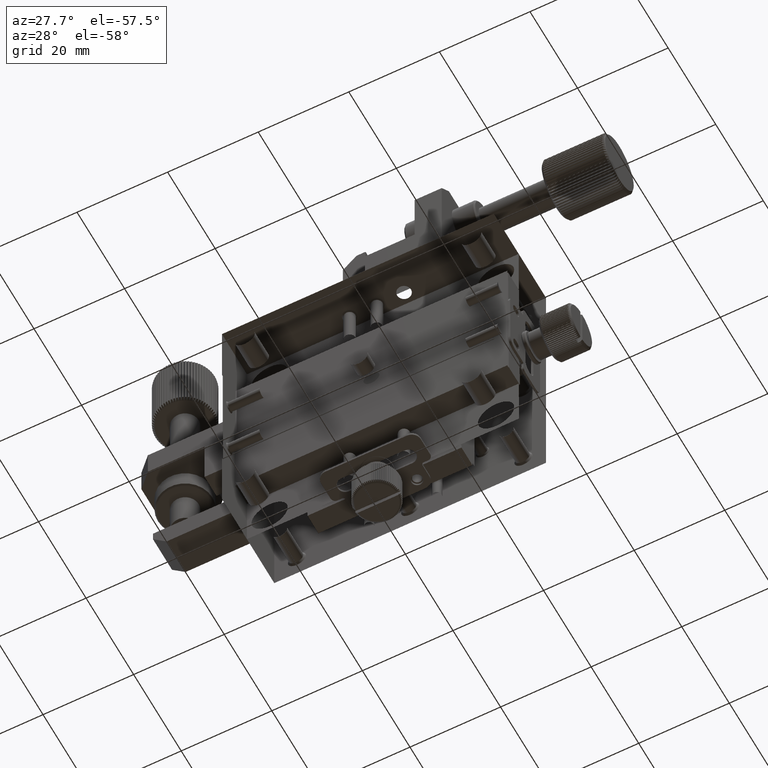
[diagram: clean part render]
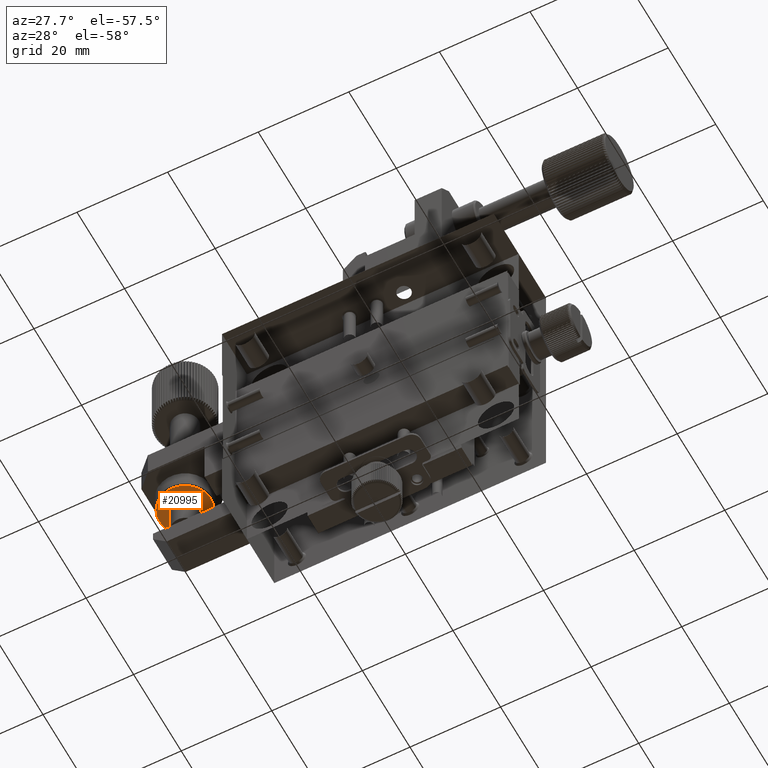
[diagram: same view with one face highlighted and labeled with its STEP entity id]
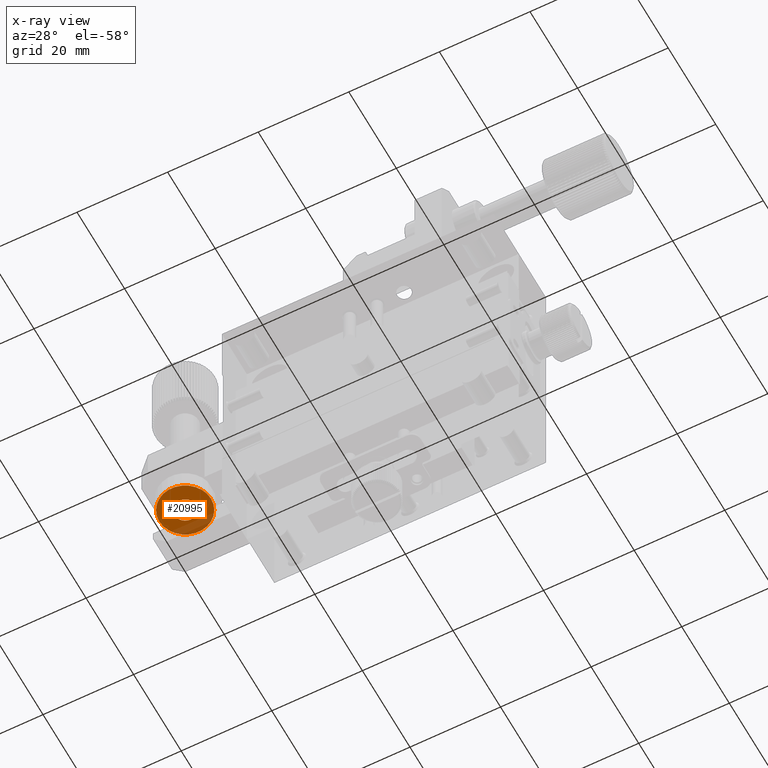
[diagram: x-ray of the same camera — body ghosted, the highlighted face saturated]
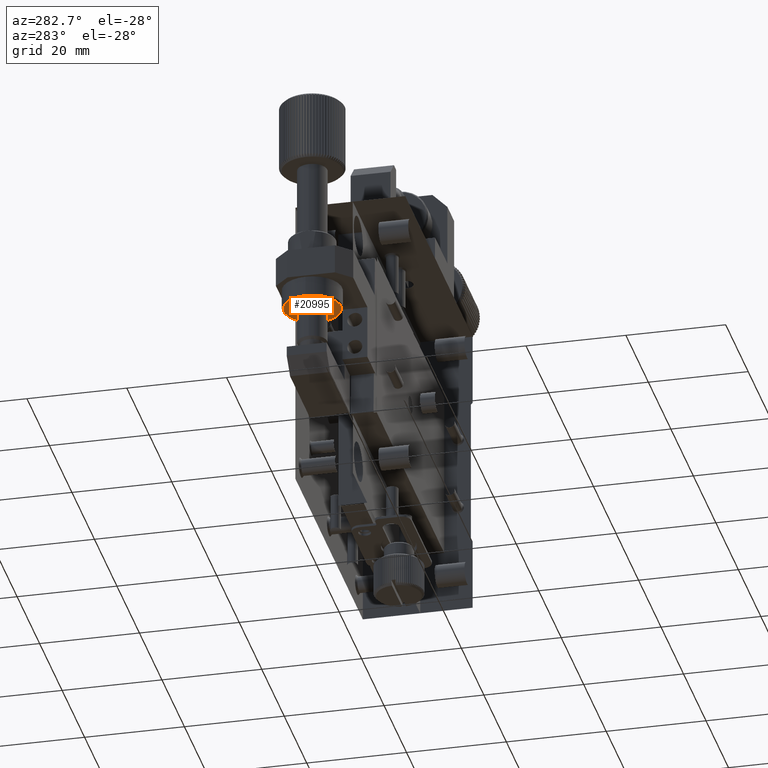
[diagram: same view with one face highlighted and labeled with its STEP entity id]
A machine part, auxiliary view. The second image highlights one B-rep face of the part: STEP entity #20995.
The next image is the same camera in x-ray: the body ghosted, the highlighted face saturated — about 21% of this face is hidden behind the body in this view.
A second angle (auxiliary view) of the same face is appended — the face is thin or edge-on in the first view.
In plain terms, the highlighted planar face has unit normal (0, 0, -1).
Its self-contained STEP definition (entity closure, byte-faithful):
#1257 = CARTESIAN_POINT ( 'NONE',  ( -45.84386001135637656, 12.54146631559649805, -1.500000000017735591 ) ) ;
#1467 = CARTESIAN_POINT ( 'NONE',  ( -43.56307693274084869, 15.38651407588767839, -1.500000000017736035 ) ) ;
#1470 = CARTESIAN_POINT ( 'NONE',  ( -43.54150000001118315, 15.00000000000000000, -1.500000000017735813 ) ) ;
#1480 = CARTESIAN_POINT ( 'NONE',  ( -47.42447994071800110, 12.98329382427787593, -1.500000000017736257 ) ) ;
#1709 = CARTESIAN_POINT ( 'NONE',  ( -45.11474626783784458, 12.70631838313285833, -1.500000000017736035 ) ) ;
#2004 = AXIS2_PLACEMENT_3D ( 'NONE', #3689, #20620, #4136 ) ;
#2157 = CARTESIAN_POINT ( 'NONE',  ( -45.05569850160442513, 17.27001743004913337, -1.500000000017735813 ) ) ;
#2189 = CARTESIAN_POINT ( 'NONE',  ( -48.45849999998881685, 15.00000000000000000, -1.500000000017735813 ) ) ;
#2419 = B_SPLINE_CURVE_WITH_KNOTS ( 'NONE', 3,
 ( #32676, #29208, #15812, #18801, #11672, #40303, #22497, #40531, #22731, #32913, #33136, #1480, #22961, #25962, #43058, #8870, #4482, #22045, #25730, #1257, #37062, #15575, #29664, #43752, #15352, #1709, #29435, #14886, #12126, #43520, #40072, #36843, #8413, #19259, #26194, #43982, #18357, #32447 ),
 .UNSPECIFIED., .F., .F.,
 ( 4, 1, 1, 1, 2, 2, 2, 1, 1, 1, 2, 2, 2, 1, 1, 1, 2, 2, 2, 1, 1, 1, 2, 2, 4 ),
 ( 0.000000000000000000, 0.06249999999999830691, 0.09374999999999780731, 0.1093749999999972106, 0.1171874999999972522, 0.1249999999999972800, 0.2500000000000011102, 0.3125000000000029976, 0.3437500000000028866, 0.3593750000000028311, 0.3671875000000027756, 0.3750000000000027200, 0.5000000000000223155, 0.5625000000000307532, 0.5937500000000334177, 0.6093750000000347500, 0.6171875000000340838, 0.6250000000000334177, 0.7500000000000294209, 0.8125000000000274225, 0.8437500000000266454, 0.8593750000000256462, 0.8671875000000254241, 0.8750000000000252021, 1.000000000000000000 ),
 .UNSPECIFIED. ) ;
#2618 = CARTESIAN_POINT ( 'NONE',  ( -46.38636508555966032, 17.43698201498396472, -1.500000000017736479 ) ) ;
#3483 = CIRCLE ( 'NONE', #2004, 5.699999999933424988 ) ;
#3689 = CARTESIAN_POINT ( 'NONE',  ( -46.00000000000000000, 15.00000000000000000, -1.499999999956799890 ) ) ;
#3804 = FACE_BOUND ( 'NONE', #23568, .T. ) ;
#4136 = DIRECTION ( 'NONE',  ( 1.000000000000000000, 0.000000000000000000, 0.000000000000000000 ) ) ;
#4482 = CARTESIAN_POINT ( 'NONE',  ( -46.92310645514726275, 12.72130355280236458, -1.500000000017736035 ) ) ;
#4690 = CARTESIAN_POINT ( 'NONE',  ( -43.69995559974456256, 15.86856154696121202, -1.500000000017735813 ) ) ;
#5382 = CARTESIAN_POINT ( 'NONE',  ( -45.68772002271091992, 17.45843263116046984, -1.500000000017735813 ) ) ;
#5838 = CARTESIAN_POINT ( 'NONE',  ( -48.16383904999658228, 16.17305374460406142, -1.500000000017736035 ) ) ;
#7873 = EDGE_CURVE ( 'NONE', #35235, #19759, #2419, .T. ) ;
#8162 = CARTESIAN_POINT ( 'NONE',  ( -44.38144051192353601, 16.85833707274297311, -1.500000000017735813 ) ) ;
#8413 = CARTESIAN_POINT ( 'NONE',  ( -43.74652166160791467, 14.01680427626521741, -1.500000000017735591 ) ) ;
#8854 = CARTESIAN_POINT ( 'NONE',  ( -48.45849999998880975, 15.31280699622388219, -1.500000000017735369 ) ) ;
#8870 = CARTESIAN_POINT ( 'NONE',  ( -46.94430149839546118, 12.72998256995088973, -1.500000000017736257 ) ) ;
#9311 = CARTESIAN_POINT ( 'NONE',  ( -48.25347833838762313, 15.98319572374052022, -1.500000000017736035 ) ) ;
#9321 = B_SPLINE_CURVE_WITH_KNOTS ( 'NONE', 3,
 ( #25269, #11653, #1467, #39823, #39367, #18342, #4690, #43038, #25715, #11416, #8162, #18787, #40514, #12559, #37048, #2157, #23635, #30560, #5382, #23417, #2618, #27308, #44187, #23858, #9756, #19716, #33818, #37511, #19473, #12786, #5838, #41194, #9311, #44651, #16712, #26856, #8854, #19942 ),
 .UNSPECIFIED., .F., .F.,
 ( 4, 1, 1, 1, 2, 2, 2, 1, 1, 1, 2, 2, 2, 1, 1, 1, 2, 2, 2, 1, 1, 1, 2, 2, 4 ),
 ( 0.000000000000000000, 0.06250000000000464906, 0.09375000000000661970, 0.1093750000000082850, 0.1171875000000091177, 0.1250000000000099365, 0.2500000000000313638, 0.3125000000000420775, 0.3437500000000463518, 0.3593750000000481837, 0.3671875000000490719, 0.3750000000000500155, 0.5000000000000507372, 0.5625000000000510703, 0.5937500000000525135, 0.6093750000000545120, 0.6171875000000545120, 0.6250000000000544009, 0.7500000000000456302, 0.8125000000000417444, 0.8437500000000393019, 0.8593750000000380806, 0.8671875000000363043, 0.8750000000000345279, 1.000000000000000000 ),
 .UNSPECIFIED. ) ;
#9756 = CARTESIAN_POINT ( 'NONE',  ( -46.86854092776401615, 17.30005255819948218, -1.500000000017735813 ) ) ;
#10744 = PLANE ( 'NONE',  #32781 ) ;
#11199 = DIRECTION ( 'NONE',  ( -1.000000000000000000, 0.000000000000000000, -0.000000000000000000 ) ) ;
#11416 = CARTESIAN_POINT ( 'NONE',  ( -44.02185291153529789, 16.49859191913171941, -1.500000000017735369 ) ) ;
#11653 = CARTESIAN_POINT ( 'NONE',  ( -43.54150000001119736, 15.15622512597483684, -1.500000000017736257 ) ) ;
#11672 = CARTESIAN_POINT ( 'NONE',  ( -48.33308407849769850, 14.22287952510528974, -1.500000000017735813 ) ) ;
#12126 = CARTESIAN_POINT ( 'NONE',  ( -44.14166292725166585, 13.38144051193161665, -1.500000000017735813 ) ) ;
#12559 = CARTESIAN_POINT ( 'NONE',  ( -44.95890936784590508, 17.22799771734324992, -1.500000000017735591 ) ) ;
#12786 = CARTESIAN_POINT ( 'NONE',  ( -48.01670617571470956, 16.42447994072633932, -1.500000000017736035 ) ) ;
#14886 = CARTESIAN_POINT ( 'NONE',  ( -44.50140808087902400, 13.02185291151911173, -1.500000000017735813 ) ) ;
#15352 = CARTESIAN_POINT ( 'NONE',  ( -45.13145907223619702, 12.69994744180039881, -1.500000000017735369 ) ) ;
#15575 = CARTESIAN_POINT ( 'NONE',  ( -45.35201251863101390, 12.62596544240805940, -1.500000000017736035 ) ) ;
#15788 = ORIENTED_EDGE ( 'NONE', *, *, #7873, .T. ) ;
#15812 = CARTESIAN_POINT ( 'NONE',  ( -48.43692306725916552, 14.61348592411605729, -1.500000000017735813 ) ) ;
#16712 = CARTESIAN_POINT ( 'NONE',  ( -48.27869222724172005, 15.92311710800033531, -1.500000000017736035 ) ) ;
#18342 = CARTESIAN_POINT ( 'NONE',  ( -43.68647001678854025, 15.83203572737338760, -1.500000000017736035 ) ) ;
#18357 = CARTESIAN_POINT ( 'NONE',  ( -43.54150000001119736, 14.68719300379840043, -1.500000000017736035 ) ) ;
#18787 = CARTESIAN_POINT ( 'NONE',  ( -44.57552005928124572, 17.01670617572231947, -1.500000000017736035 ) ) ;
#18801 = CARTESIAN_POINT ( 'NONE',  ( -48.37399034679766885, 14.35190077588659996, -1.500000000017735369 ) ) ;
#19259 = CARTESIAN_POINT ( 'NONE',  ( -43.72998256994956989, 14.05569850160639511, -1.500000000017735813 ) ) ;
#19473 = CARTESIAN_POINT ( 'NONE',  ( -47.85833707273862814, 16.61855948808083028, -1.500000000017736035 ) ) ;
#19716 = CARTESIAN_POINT ( 'NONE',  ( -46.88525373216275227, 17.29368161686687699, -1.500000000017736479 ) ) ;
#19759 = VERTEX_POINT ( 'NONE', #1470 ) ;
#19942 = CARTESIAN_POINT ( 'NONE',  ( -48.45849999998881685, 15.00000000000000000, -1.500000000017735813 ) ) ;
#20620 = DIRECTION ( 'NONE',  ( 0.000000000000000000, -0.000000000000000000, -1.000000000000000000 ) ) ;
#20995 = ADVANCED_FACE ( 'NONE', ( #3804, #42382 ), #10744, .T. ) ;
#22045 = CARTESIAN_POINT ( 'NONE',  ( -46.61463105635761650, 12.59910600658515634, -1.500000000017735369 ) ) ;
#22497 = CARTESIAN_POINT ( 'NONE',  ( -48.30004440025542323, 14.13143845303930135, -1.500000000017735591 ) ) ;
#22640 = ORIENTED_EDGE ( 'NONE', *, *, #32191, .T. ) ;
#22731 = CARTESIAN_POINT ( 'NONE',  ( -48.16113127871521016, 13.77972537589768720, -1.500000000017736035 ) ) ;
#22961 = CARTESIAN_POINT ( 'NONE',  ( -47.17305374459779443, 12.83616094999787016, -1.500000000017735813 ) ) ;
#23285 = ORIENTED_EDGE ( 'NONE', *, *, #28652, .T. ) ;
#23417 = CARTESIAN_POINT ( 'NONE',  ( -46.15613998864453293, 17.45853368440298681, -1.500000000017736035 ) ) ;
#23568 = EDGE_LOOP ( 'NONE', ( #15788, #23285 ) ) ;
#23635 = CARTESIAN_POINT ( 'NONE',  ( -45.07689354485248856, 17.27869644719756437, -1.500000000017735591 ) ) ;
#23858 = CARTESIAN_POINT ( 'NONE',  ( -46.83199648438520768, 17.31354550962111105, -1.500000000017736035 ) ) ;
#24202 = CARTESIAN_POINT ( 'NONE',  ( -40.30000000006657501, 15.00000000000000000, -1.499999999956799890 ) ) ;
#25269 = CARTESIAN_POINT ( 'NONE',  ( -43.54150000001118315, 15.00000000000000000, -1.500000000017735813 ) ) ;
#25715 = CARTESIAN_POINT ( 'NONE',  ( -43.83886872128709200, 16.22027462410352783, -1.500000000017735369 ) ) ;
#25730 = CARTESIAN_POINT ( 'NONE',  ( -46.31227997728724688, 12.54156736884054801, -1.500000000017735591 ) ) ;
#25962 = CARTESIAN_POINT ( 'NONE',  ( -47.04109063215373965, 12.77200228265681936, -1.500000000017735591 ) ) ;
#26194 = CARTESIAN_POINT ( 'NONE',  ( -43.72130777275830837, 14.07688289199827736, -1.500000000017735369 ) ) ;
#26856 = CARTESIAN_POINT ( 'NONE',  ( -48.40096151270973479, 15.61446061070847513, -1.500000000017735591 ) ) ;
#27308 = CARTESIAN_POINT ( 'NONE',  ( -46.64798748137018691, 17.37403455759127269, -1.500000000017735813 ) ) ;
#28652 = EDGE_CURVE ( 'NONE', #19759, #35235, #9321, .T. ) ;
#29208 = CARTESIAN_POINT ( 'NONE',  ( -48.45849999998881685, 14.84377487402729834, -1.500000000017736035 ) ) ;
#29435 = CARTESIAN_POINT ( 'NONE',  ( -44.77972537588082957, 12.83886872129726164, -1.500000000017735813 ) ) ;
#29664 = CARTESIAN_POINT ( 'NONE',  ( -45.22294470837288571, 12.66689013187230550, -1.500000000017736035 ) ) ;
#30214 = EDGE_LOOP ( 'NONE', ( #22640 ) ) ;
#30451 = VERTEX_POINT ( 'NONE', #24202 ) ;
#30560 = CARTESIAN_POINT ( 'NONE',  ( -45.38536894364630569, 17.40089399341586684, -1.500000000017736257 ) ) ;
#32191 = EDGE_CURVE ( 'NONE', #30451, #30451, #3483, .T. ) ;
#32447 = CARTESIAN_POINT ( 'NONE',  ( -43.54150000001118315, 15.00000000000000000, -1.500000000017735813 ) ) ;
#32676 = CARTESIAN_POINT ( 'NONE',  ( -48.45849999998881685, 15.00000000000000000, -1.500000000017735813 ) ) ;
#32781 = AXIS2_PLACEMENT_3D ( 'NONE', #38706, #35467, #11199 ) ;
#32913 = CARTESIAN_POINT ( 'NONE',  ( -47.97814708846559029, 13.50140808086805677, -1.500000000017736035 ) ) ;
#33136 = CARTESIAN_POINT ( 'NONE',  ( -47.61855948807603767, 13.14166292725714413, -1.500000000017735813 ) ) ;
#33818 = CARTESIAN_POINT ( 'NONE',  ( -47.22027462410955678, 17.16113127870687194, -1.500000000017735813 ) ) ;
#35235 = VERTEX_POINT ( 'NONE', #2189 ) ;
#35467 = DIRECTION ( 'NONE',  ( 0.000000000000000000, 0.000000000000000000, -1.000000000000000000 ) ) ;
#36843 = CARTESIAN_POINT ( 'NONE',  ( -43.77200228265264315, 13.95890936785211700, -1.500000000017735813 ) ) ;
#37048 = CARTESIAN_POINT ( 'NONE',  ( -45.01680427626149594, 17.25347833838961265, -1.500000000017736479 ) ) ;
#37062 = CARTESIAN_POINT ( 'NONE',  ( -45.61363491444192420, 12.56301798501514178, -1.500000000017735813 ) ) ;
#37511 = CARTESIAN_POINT ( 'NONE',  ( -47.49859191914042356, 16.97814708845601217, -1.500000000017735813 ) ) ;
#38706 = CARTESIAN_POINT ( 'NONE',  ( -46.00000000000000000, 9.000000000050063065, -1.500000000017735813 ) ) ;
#39367 = CARTESIAN_POINT ( 'NONE',  ( -43.66691592150230150, 15.77712047489634628, -1.500000000017736479 ) ) ;
#39823 = CARTESIAN_POINT ( 'NONE',  ( -43.62600965320231694, 15.64809922411619958, -1.500000000017736035 ) ) ;
#40072 = CARTESIAN_POINT ( 'NONE',  ( -43.83616094999069190, 13.82694625541225975, -1.500000000017735813 ) ) ;
#40303 = CARTESIAN_POINT ( 'NONE',  ( -48.31352998321148107, 14.16796427262760183, -1.500000000017736035 ) ) ;
#40514 = CARTESIAN_POINT ( 'NONE',  ( -44.82694625540163713, 17.16383905000227372, -1.500000000017736479 ) ) ;
#40531 = CARTESIAN_POINT ( 'NONE',  ( -48.29368161686635830, 14.11474626783678588, -1.500000000017735369 ) ) ;
#41194 = CARTESIAN_POINT ( 'NONE',  ( -48.22799771733996010, 16.04109063215742026, -1.500000000017736257 ) ) ;
#42382 = FACE_OUTER_BOUND ( 'NONE', #30214, .T. ) ;
#43038 = CARTESIAN_POINT ( 'NONE',  ( -43.70631838313347117, 15.88525373216313774, -1.500000000017735369 ) ) ;
#43058 = CARTESIAN_POINT ( 'NONE',  ( -46.98319572373831932, 12.74652166161043709, -1.500000000017735813 ) ) ;
#43520 = CARTESIAN_POINT ( 'NONE',  ( -43.98329382426830136, 13.57552005929542815, -1.500000000017736035 ) ) ;
#43752 = CARTESIAN_POINT ( 'NONE',  ( -45.16800351561523996, 12.68645449037865447, -1.500000000017736257 ) ) ;
#43982 = CARTESIAN_POINT ( 'NONE',  ( -43.59903848729024389, 14.38553938931381815, -1.500000000017735813 ) ) ;
#44187 = CARTESIAN_POINT ( 'NONE',  ( -46.77705529162781772, 17.33310986812730192, -1.500000000017735813 ) ) ;
#44651 = CARTESIAN_POINT ( 'NONE',  ( -48.27001743004811374, 15.94430149839662647, -1.500000000017736035 ) ) ;